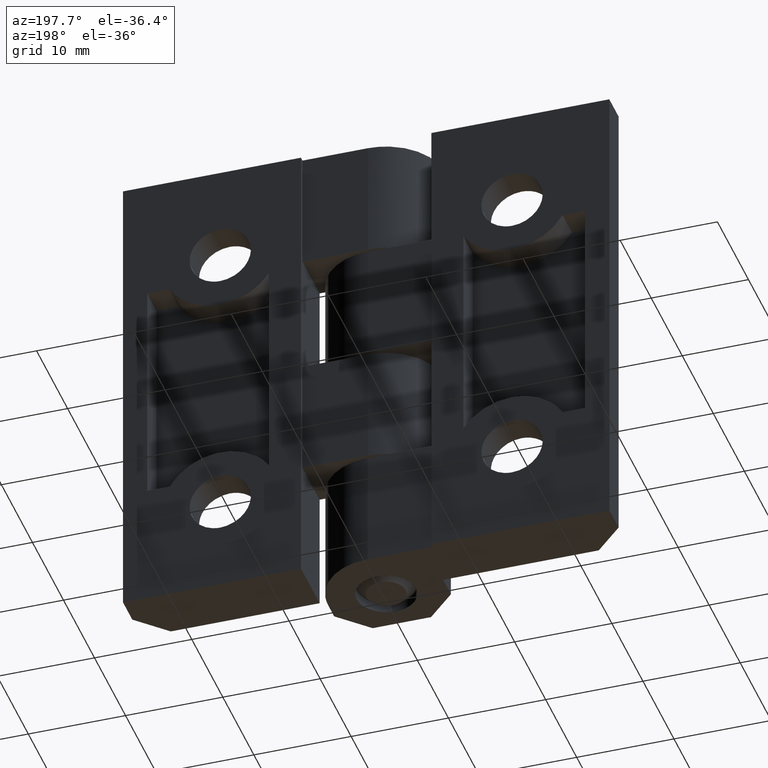
[diagram: clean part render]
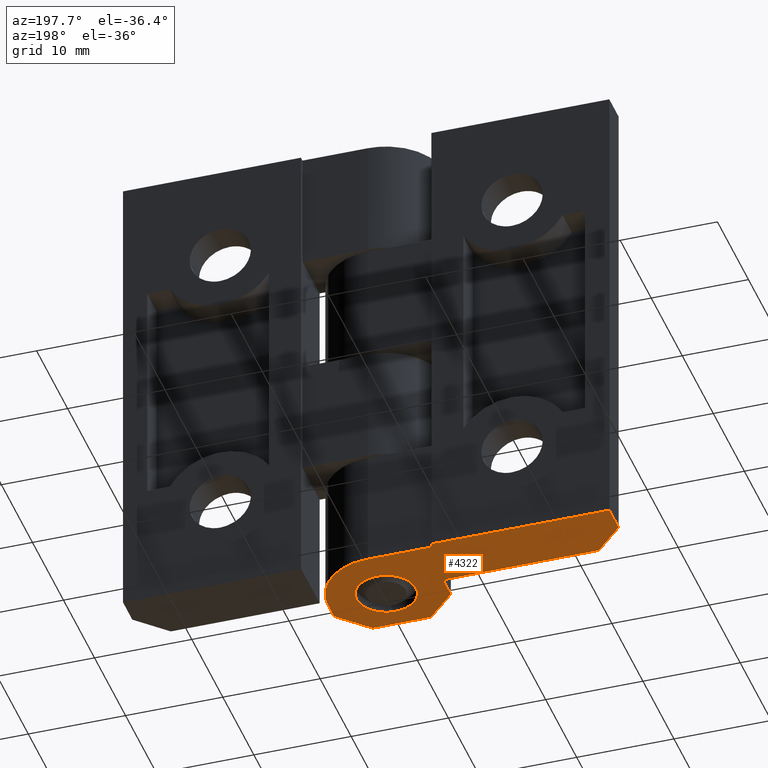
[diagram: same view with one face highlighted and labeled with its STEP entity id]
A machine part, auxiliary view. The second image highlights one B-rep face of the part: STEP entity #4322.
In plain terms, the highlighted face is a freeform B-spline surface patch.
Its self-contained STEP definition (entity closure, byte-faithful):
#3577=CARTESIAN_POINT('',(0.360005145363306,-3.028679199251942,-1.419714E-016));
#3578=VERTEX_POINT('',#3577);
#3584=CARTESIAN_POINT('',(-3.049999432405527,0.0,0.0));
#3585=VERTEX_POINT('',#3584);
#3586=CARTESIAN_POINT('',(0.360005145363306,-3.028679199251941,-1.419714E-016));
#3587=CARTESIAN_POINT('',(0.180634286079908,-3.050000144867240,0.0));
#3588=CARTESIAN_POINT('',(0.000000712461713,-3.050000144867240,0.0));
#3589=CARTESIAN_POINT('',(-3.049999432405526,-3.050000144867239,0.0));
#3590=CARTESIAN_POINT('',(-3.049999432405527,0.0,0.0));
#3598=(BOUNDED_CURVE()B_SPLINE_CURVE(2,(#3586,#3587,#3588,#3589,#3590),.UNSPECIFIED.,.F.,.U.)B_SPLINE_CURVE_WITH_KNOTS((3,2,3),(0.229562473504575,0.250000000000000,0.500000000000000),.UNSPECIFIED.)CURVE()GEOMETRIC_REPRESENTATION_ITEM()RATIONAL_B_SPLINE_CURVE((0.956026754166189,0.976055948320679,1.0,0.707106781186548,1.0))REPRESENTATION_ITEM(''));
#3599=EDGE_CURVE('',#3578,#3585,#3598,.T.);
#3601=CARTESIAN_POINT('',(-0.186192045606208,3.044311603713570,5.551115E-016));
#3602=VERTEX_POINT('',#3601);
#3603=CARTESIAN_POINT('',(-3.049999432405527,0.0,0.0));
#3604=CARTESIAN_POINT('',(-3.049999432405527,2.869158641297065,0.0));
#3605=CARTESIAN_POINT('',(-0.186192045606208,3.044311603713570,5.551115E-016));
#3613=(BOUNDED_CURVE()B_SPLINE_CURVE(2,(#3603,#3604,#3605),.UNSPECIFIED.,.F.,.U.)B_SPLINE_CURVE_WITH_KNOTS((3,3),(0.500000000000000,0.739333262431264),.UNSPECIFIED.)CURVE()GEOMETRIC_REPRESENTATION_ITEM()RATIONAL_B_SPLINE_CURVE((1.0,0.719603641589530,0.976072685036850))REPRESENTATION_ITEM(''));
#3614=EDGE_CURVE('',#3585,#3602,#3613,.T.);
#3688=CARTESIAN_POINT('',(3.050000857328953,0.0,0.0));
#3689=VERTEX_POINT('',#3688);
#3690=CARTESIAN_POINT('',(-0.186192045606208,3.044311603713570,5.551115E-016));
#3691=CARTESIAN_POINT('',(-0.093182564421532,3.050000144867239,0.0));
#3692=CARTESIAN_POINT('',(0.000000712461713,3.050000144867240,0.0));
#3693=CARTESIAN_POINT('',(3.050000857328952,3.050000144867239,0.0));
#3694=CARTESIAN_POINT('',(3.050000857328953,0.0,0.0));
#3702=(BOUNDED_CURVE()B_SPLINE_CURVE(2,(#3690,#3691,#3692,#3693,#3694),.UNSPECIFIED.,.F.,.U.)B_SPLINE_CURVE_WITH_KNOTS((3,2,3),(0.739333262431264,0.750000000000000,1.0),.UNSPECIFIED.)CURVE()GEOMETRIC_REPRESENTATION_ITEM()RATIONAL_B_SPLINE_CURVE((0.976072685036850,0.987503139597018,1.0,0.707106781186548,1.0))REPRESENTATION_ITEM(''));
#3703=EDGE_CURVE('',#3602,#3689,#3702,.T.);
#3705=CARTESIAN_POINT('',(3.050000857328953,0.0,0.0));
#3706=CARTESIAN_POINT('',(3.050000857328952,-2.708932432640385,0.0));
#3707=CARTESIAN_POINT('',(0.360005145363306,-3.028679199251941,-1.419714E-016));
#3715=(BOUNDED_CURVE()B_SPLINE_CURVE(2,(#3705,#3706,#3707),.UNSPECIFIED.,.F.,.U.)B_SPLINE_CURVE_WITH_KNOTS((3,3),(0.0,0.229562473504575),.UNSPECIFIED.)CURVE()GEOMETRIC_REPRESENTATION_ITEM()RATIONAL_B_SPLINE_CURVE((1.0,0.731050832865869,0.956026754166189))REPRESENTATION_ITEM(''));
#3716=EDGE_CURVE('',#3689,#3578,#3715,.T.);
#4217=CARTESIAN_POINT('',(-26.548450197432128,-5.574425026574228,0.0));
#4218=CARTESIAN_POINT('',(7.548451828550437,-5.574425026574228,0.0));
#4219=CARTESIAN_POINT('',(-26.548450197432128,7.074425611910465,0.0));
#4220=CARTESIAN_POINT('',(7.548451828550436,7.074425611910465,0.0));
#4221=B_SPLINE_SURFACE_WITH_KNOTS('',1,1,((#4217,#4219),(#4218,#4220)),.UNSPECIFIED.,.F.,.F.,.U.,(2,2),(2,2),(0.0,34.096902025982573),(0.0,12.648850638484690),.UNSPECIFIED.);
#4222=CARTESIAN_POINT('',(-5.999999572523000,0.500000023748726,0.0));
#4223=VERTEX_POINT('',#4222);
#4224=CARTESIAN_POINT('',(-22.000000332482252,0.500000023748726,0.0));
#4225=VERTEX_POINT('',#4224);
#4226=CARTESIAN_POINT('',(-5.999999572523000,0.500000023748726,0.0));
#4227=CARTESIAN_POINT('',(-22.000000332482252,0.500000023748726,0.0));
#4228=QUASI_UNIFORM_CURVE('',1,(#4226,#4227),.UNSPECIFIED.,.F.,.U.);
#4229=EDGE_CURVE('',#4223,#4225,#4228,.T.);
#4230=ORIENTED_EDGE('',*,*,#4229,.T.);
#4231=CARTESIAN_POINT('',(-25.000000474974549,3.500000166241080,0.0));
#4232=VERTEX_POINT('',#4231);
#4233=CARTESIAN_POINT('',(-22.000000332482252,0.500000023748726,0.0));
#4234=CARTESIAN_POINT('',(-25.000000474974549,3.500000166241080,0.0));
#4235=QUASI_UNIFORM_CURVE('',1,(#4233,#4234),.UNSPECIFIED.,.F.,.U.);
#4236=EDGE_CURVE('',#4225,#4232,#4235,.T.);
#4237=ORIENTED_EDGE('',*,*,#4236,.T.);
#4238=CARTESIAN_POINT('',(-25.000000474974549,6.500000308733441,0.0));
#4239=VERTEX_POINT('',#4238);
#4240=CARTESIAN_POINT('',(-25.000000474974549,3.500000166241080,0.0));
#4241=CARTESIAN_POINT('',(-25.000000474974549,6.500000308733441,0.0));
#4242=QUASI_UNIFORM_CURVE('',1,(#4240,#4241),.UNSPECIFIED.,.F.,.U.);
#4243=EDGE_CURVE('',#4232,#4239,#4242,.T.);
#4244=ORIENTED_EDGE('',*,*,#4243,.T.);
#4245=CARTESIAN_POINT('',(-6.699999605771200,6.500000308733441,0.0));
#4246=VERTEX_POINT('',#4245);
#4247=CARTESIAN_POINT('',(-25.000000474974549,6.500000308733441,0.0));
#4248=CARTESIAN_POINT('',(-6.699999605771200,6.500000308733441,0.0));
#4249=QUASI_UNIFORM_CURVE('',1,(#4247,#4248),.UNSPECIFIED.,.F.,.U.);
#4250=EDGE_CURVE('',#4239,#4246,#4249,.T.);
#4251=ORIENTED_EDGE('',*,*,#4250,.T.);
#4252=CARTESIAN_POINT('',(-6.699999605771200,6.000000284984740,0.0));
#4253=VERTEX_POINT('',#4252);
#4254=CARTESIAN_POINT('',(-6.699999605771200,6.500000308733441,0.0));
#4255=CARTESIAN_POINT('',(-6.699999605771200,6.000000284984740,0.0));
#4256=QUASI_UNIFORM_CURVE('',1,(#4254,#4255),.UNSPECIFIED.,.F.,.U.);
#4257=EDGE_CURVE('',#4246,#4253,#4256,.T.);
#4258=ORIENTED_EDGE('',*,*,#4257,.T.);
#4259=CARTESIAN_POINT('',(0.000000712461725,6.000000284984720,0.0));
#4260=VERTEX_POINT('',#4259);
#4261=CARTESIAN_POINT('',(-6.699999605771200,6.000000284984740,0.0));
#4262=CARTESIAN_POINT('',(0.000000712461725,6.000000284984720,0.0));
#4263=QUASI_UNIFORM_CURVE('',1,(#4261,#4262),.UNSPECIFIED.,.F.,.U.);
#4264=EDGE_CURVE('',#4253,#4260,#4263,.T.);
#4265=ORIENTED_EDGE('',*,*,#4264,.T.);
#4266=CARTESIAN_POINT('',(6.000000997446400,1.469528E-015,0.0));
#4267=VERTEX_POINT('',#4266);
#4268=CARTESIAN_POINT('',(0.000000712461725,6.000000284984720,0.0));
#4269=CARTESIAN_POINT('',(6.000000997446403,6.000000284984688,0.0));
#4270=CARTESIAN_POINT('',(6.000000997446403,0.0,0.0));
#4278=(BOUNDED_CURVE()B_SPLINE_CURVE(2,(#4268,#4269,#4270),.UNSPECIFIED.,.F.,.U.)CURVE()GEOMETRIC_REPRESENTATION_ITEM()QUASI_UNIFORM_CURVE()RATIONAL_B_SPLINE_CURVE((1.0,0.707106781186547,1.0))REPRESENTATION_ITEM(''));
#4279=EDGE_CURVE('',#4260,#4267,#4278,.T.);
#4280=ORIENTED_EDGE('',*,*,#4279,.T.);
#4281=CARTESIAN_POINT('',(6.000000997446420,-2.000000094994930,0.0));
#4282=VERTEX_POINT('',#4281);
#4283=CARTESIAN_POINT('',(6.000000997446400,1.469528E-015,0.0));
#4284=CARTESIAN_POINT('',(6.000000997446420,-2.000000094994930,0.0));
#4285=QUASI_UNIFORM_CURVE('',1,(#4283,#4284),.UNSPECIFIED.,.F.,.U.);
#4286=EDGE_CURVE('',#4267,#4282,#4285,.T.);
#4287=ORIENTED_EDGE('',*,*,#4286,.T.);
#4288=CARTESIAN_POINT('',(3.000000854954080,-5.000000237487250,0.0));
#4289=VERTEX_POINT('',#4288);
#4290=CARTESIAN_POINT('',(6.000000997446420,-2.000000094994930,0.0));
#4291=CARTESIAN_POINT('',(3.000000854954080,-5.000000237487250,0.0));
#4292=QUASI_UNIFORM_CURVE('',1,(#4290,#4291),.UNSPECIFIED.,.F.,.U.);
#4293=EDGE_CURVE('',#4282,#4289,#4292,.T.);
#4294=ORIENTED_EDGE('',*,*,#4293,.T.);
#4295=CARTESIAN_POINT('',(-2.999999430030625,-5.000000237487290,0.0));
#4296=VERTEX_POINT('',#4295);
#4297=CARTESIAN_POINT('',(3.000000854954080,-5.000000237487250,0.0));
#4298=CARTESIAN_POINT('',(-2.999999430030625,-5.000000237487290,0.0));
#4299=QUASI_UNIFORM_CURVE('',1,(#4297,#4298),.UNSPECIFIED.,.F.,.U.);
#4300=EDGE_CURVE('',#4289,#4296,#4299,.T.);
#4301=ORIENTED_EDGE('',*,*,#4300,.T.);
#4302=CARTESIAN_POINT('',(-5.999999572523000,-2.000000094994905,0.0));
#4303=VERTEX_POINT('',#4302);
#4304=CARTESIAN_POINT('',(-2.999999430030625,-5.000000237487290,0.0));
#4305=CARTESIAN_POINT('',(-5.999999572523000,-2.000000094994905,0.0));
#4306=QUASI_UNIFORM_CURVE('',1,(#4304,#4305),.UNSPECIFIED.,.F.,.U.);
#4307=EDGE_CURVE('',#4296,#4303,#4306,.T.);
#4308=ORIENTED_EDGE('',*,*,#4307,.T.);
#4309=CARTESIAN_POINT('',(-5.999999572523000,-2.000000094994905,0.0));
#4310=CARTESIAN_POINT('',(-5.999999572523000,0.500000023748726,0.0));
#4311=QUASI_UNIFORM_CURVE('',1,(#4309,#4310),.UNSPECIFIED.,.F.,.U.);
#4312=EDGE_CURVE('',#4303,#4223,#4311,.T.);
#4313=ORIENTED_EDGE('',*,*,#4312,.T.);
#4314=EDGE_LOOP('',(#4230,#4237,#4244,#4251,#4258,#4265,#4280,#4287,#4294,#4301,#4308,#4313));
#4315=FACE_OUTER_BOUND('',#4314,.T.);
#4316=ORIENTED_EDGE('',*,*,#3614,.F.);
#4317=ORIENTED_EDGE('',*,*,#3599,.F.);
#4318=ORIENTED_EDGE('',*,*,#3716,.F.);
#4319=ORIENTED_EDGE('',*,*,#3703,.F.);
#4320=EDGE_LOOP('',(#4316,#4317,#4318,#4319));
#4321=FACE_BOUND('',#4320,.T.);
#4322=ADVANCED_FACE('',(#4315,#4321),#4221,.F.);